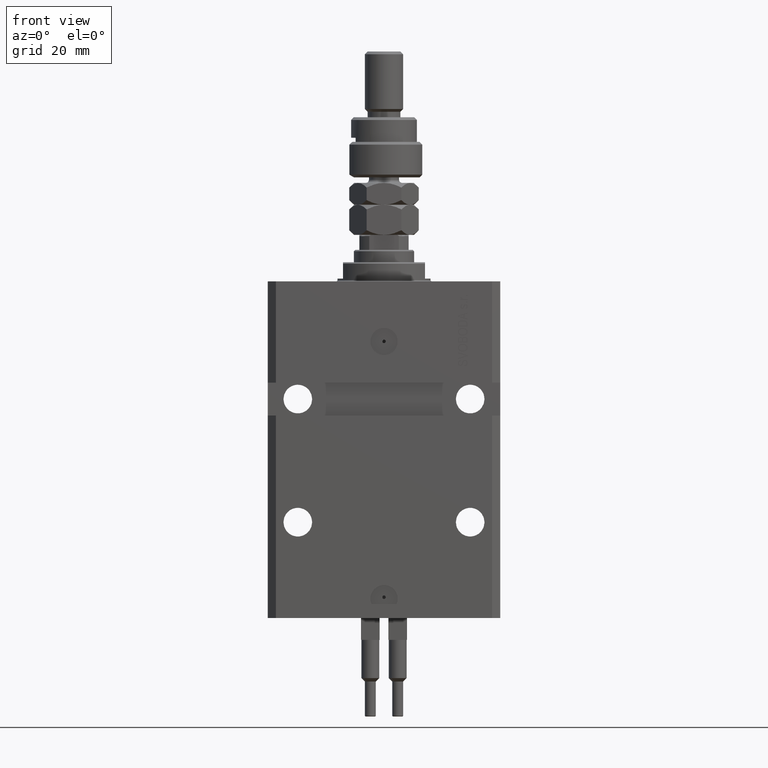
[diagram: clean part render]
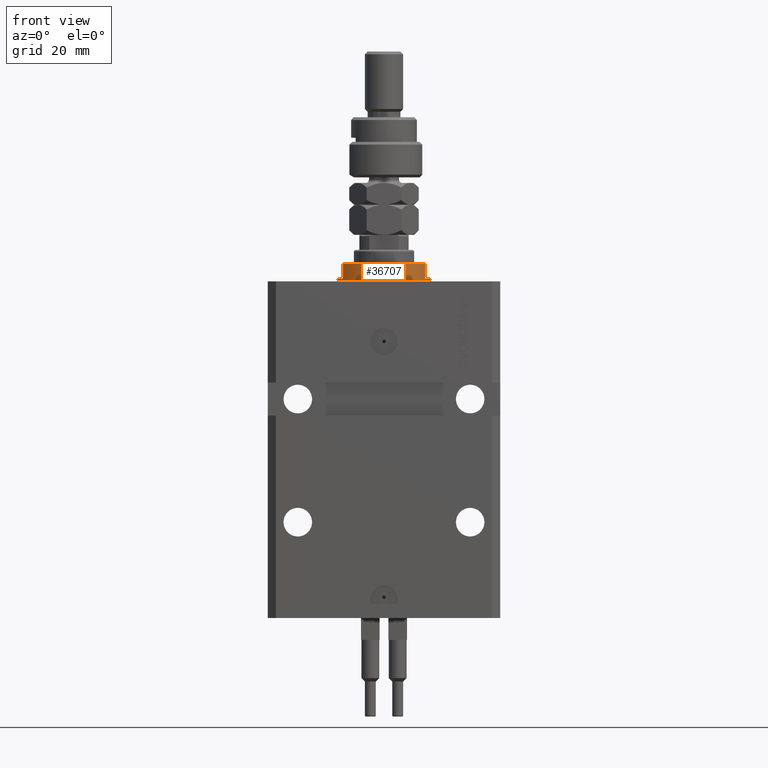
[diagram: same view with one face highlighted and labeled with its STEP entity id]
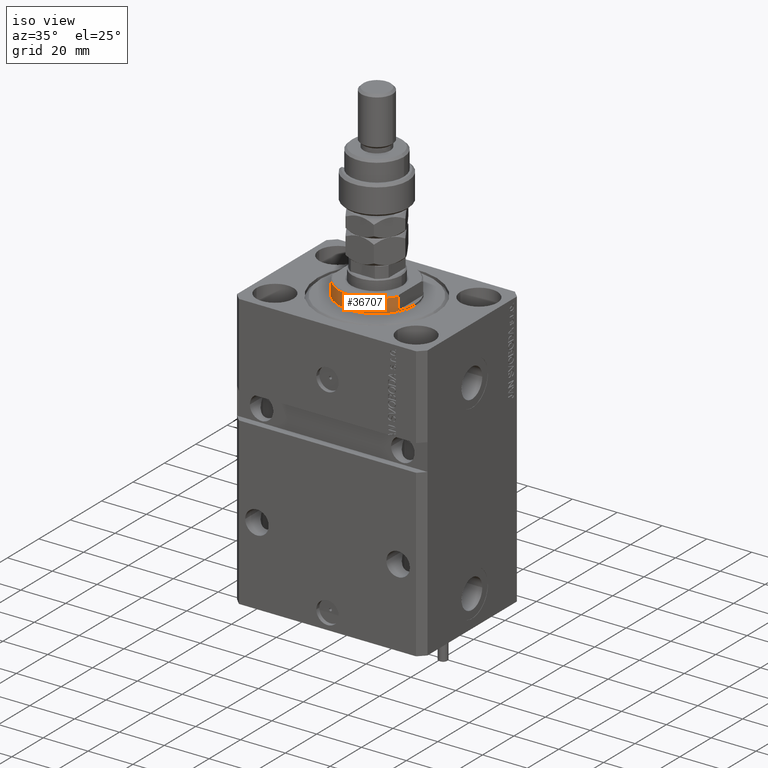
[diagram: same view with one face highlighted and labeled with its STEP entity id]
A machine part, front view. The second image highlights one B-rep face of the part: STEP entity #36707.
A second angle (iso view) of the same face is appended — the face is thin or edge-on in the first view.
In plain terms, the highlighted cylindrical surface (partial cylindrical patch) has radius 17 mm, axis along (0, 0, -1).
Its self-contained STEP definition (entity closure, byte-faithful):
#641 = ORIENTED_EDGE ( 'NONE', *, *, #50658, .F. ) ;
#1366 = ORIENTED_EDGE ( 'NONE', *, *, #15974, .F. ) ;
#1622 = CARTESIAN_POINT ( 'NONE',  ( 0.000000000000000000, 0.000000000000000000, -7.000000000000000000 ) ) ;
#1880 = VERTEX_POINT ( 'NONE', #36834 ) ;
#2898 = AXIS2_PLACEMENT_3D ( 'NONE', #16573, #23932, #12649 ) ;
#4112 = ORIENTED_EDGE ( 'NONE', *, *, #48056, .F. ) ;
#4373 = DIRECTION ( 'NONE',  ( 0.000000000000000000, 0.000000000000000000, -1.000000000000000000 ) ) ;
#5513 = CARTESIAN_POINT ( 'NONE',  ( 15.00000000000000000, -8.000000000000001776, -7.000000000000000000 ) ) ;
#5540 = FACE_OUTER_BOUND ( 'NONE', #41732, .T. ) ;
#7303 = EDGE_CURVE ( 'NONE', #45342, #14255, #46890, .T. ) ;
#7553 = CARTESIAN_POINT ( 'NONE',  ( -17.00000000000000000, 2.081899558550500280E-15, -0.4999999999999995559 ) ) ;
#7992 = DIRECTION ( 'NONE',  ( 1.000000000000000000, 0.000000000000000000, 0.000000000000000000 ) ) ;
#8788 = CIRCLE ( 'NONE', #48072, 17.00000000000000000 ) ;
#8880 = CARTESIAN_POINT ( 'NONE',  ( 15.00000000000000000, -8.000000000000001776, -6.500000000000013323 ) ) ;
#10437 = VERTEX_POINT ( 'NONE', #7553 ) ;
#12225 = CARTESIAN_POINT ( 'NONE',  ( -14.99999999999999645, -8.000000000000003553, -1.000000000000000000 ) ) ;
#12649 = DIRECTION ( 'NONE',  ( -1.000000000000000000, 0.000000000000000000, 0.000000000000000000 ) ) ;
#13000 = LINE ( 'NONE', #28987, #43230 ) ;
#13842 = CARTESIAN_POINT ( 'NONE',  ( 17.00000000000000000, 0.000000000000000000, -1.000000000000000000 ) ) ;
#14255 = VERTEX_POINT ( 'NONE', #46211 ) ;
#14864 = DIRECTION ( 'NONE',  ( 1.000000000000000000, 0.000000000000000000, 0.000000000000000000 ) ) ;
#15489 = DIRECTION ( 'NONE',  ( 0.000000000000000000, 0.000000000000000000, -1.000000000000000000 ) ) ;
#15719 = ORIENTED_EDGE ( 'NONE', *, *, #7303, .T. ) ;
#15974 = EDGE_CURVE ( 'NONE', #51466, #22383, #30402, .T. ) ;
#16573 = CARTESIAN_POINT ( 'NONE',  ( 0.000000000000000000, 0.000000000000000000, -6.500000000000013323 ) ) ;
#17924 = VECTOR ( 'NONE', #34971, 1000.000000000000000 ) ;
#18477 = VECTOR ( 'NONE', #4373, 1000.000000000000000 ) ;
#18984 = CARTESIAN_POINT ( 'NONE',  ( -17.00000000000000000, 2.081899558550500280E-15, -7.000000000000000000 ) ) ;
#22383 = VERTEX_POINT ( 'NONE', #8880 ) ;
#23015 = CIRCLE ( 'NONE', #23835, 17.00000000000000000 ) ;
#23835 = AXIS2_PLACEMENT_3D ( 'NONE', #31290, #39387, #48011 ) ;
#23932 = DIRECTION ( 'NONE',  ( 0.000000000000000000, 0.000000000000000000, 1.000000000000000000 ) ) ;
#25137 = AXIS2_PLACEMENT_3D ( 'NONE', #1622, #29918, #7992 ) ;
#25772 = VERTEX_POINT ( 'NONE', #13842 ) ;
#26002 = EDGE_CURVE ( 'NONE', #25772, #1880, #13000, .T. ) ;
#28987 = CARTESIAN_POINT ( 'NONE',  ( 17.00000000000000000, 0.000000000000000000, -7.000000000000000000 ) ) ;
#29918 = DIRECTION ( 'NONE',  ( -0.000000000000000000, -0.000000000000000000, 1.000000000000000000 ) ) ;
#30402 = LINE ( 'NONE', #5513, #31243 ) ;
#30506 = CIRCLE ( 'NONE', #38015, 17.00000000000000000 ) ;
#31243 = VECTOR ( 'NONE', #46098, 1000.000000000000000 ) ;
#31290 = CARTESIAN_POINT ( 'NONE',  ( 0.000000000000000000, 0.000000000000000000, -1.000000000000000000 ) ) ;
#31306 = ORIENTED_EDGE ( 'NONE', *, *, #45210, .T. ) ;
#31809 = CARTESIAN_POINT ( 'NONE',  ( 14.99999999999999645, -8.000000000000003553, -1.000000000000000000 ) ) ;
#33695 = ORIENTED_EDGE ( 'NONE', *, *, #26002, .T. ) ;
#33764 = CARTESIAN_POINT ( 'NONE',  ( 0.000000000000000000, 0.000000000000000000, -0.4999999999999995559 ) ) ;
#34397 = CARTESIAN_POINT ( 'NONE',  ( 0.000000000000000000, 0.000000000000000000, -1.000000000000000000 ) ) ;
#34883 = ORIENTED_EDGE ( 'NONE', *, *, #49909, .F. ) ;
#34971 = DIRECTION ( 'NONE',  ( -0.000000000000000000, -0.000000000000000000, 1.000000000000000000 ) ) ;
#36084 = CARTESIAN_POINT ( 'NONE',  ( -15.00000000000000000, -8.000000000000001776, -7.000000000000000000 ) ) ;
#36358 = CIRCLE ( 'NONE', #2898, 17.00000000000000000 ) ;
#36707 = ADVANCED_FACE ( 'NONE', ( #5540 ), #37515, .T. ) ;
#36834 = CARTESIAN_POINT ( 'NONE',  ( 17.00000000000000000, 0.000000000000000000, -0.4999999999999995559 ) ) ;
#37515 = CYLINDRICAL_SURFACE ( 'NONE', #25137, 17.00000000000000000 ) ;
#38015 = AXIS2_PLACEMENT_3D ( 'NONE', #33764, #50740, #14864 ) ;
#38890 = LINE ( 'NONE', #18984, #17924 ) ;
#39387 = DIRECTION ( 'NONE',  ( 0.000000000000000000, 0.000000000000000000, -1.000000000000000000 ) ) ;
#41732 = EDGE_LOOP ( 'NONE', ( #4112, #641, #15719, #41795, #1366, #34883, #33695, #31306 ) ) ;
#41795 = ORIENTED_EDGE ( 'NONE', *, *, #49689, .T. ) ;
#43230 = VECTOR ( 'NONE', #44940, 1000.000000000000000 ) ;
#43334 = VERTEX_POINT ( 'NONE', #46210 ) ;
#44940 = DIRECTION ( 'NONE',  ( -0.000000000000000000, -0.000000000000000000, 1.000000000000000000 ) ) ;
#45210 = EDGE_CURVE ( 'NONE', #1880, #10437, #30506, .T. ) ;
#45342 = VERTEX_POINT ( 'NONE', #12225 ) ;
#46098 = DIRECTION ( 'NONE',  ( 0.000000000000000000, 0.000000000000000000, -1.000000000000000000 ) ) ;
#46210 = CARTESIAN_POINT ( 'NONE',  ( -17.00000000000000000, 2.081899558550500280E-15, -1.000000000000000000 ) ) ;
#46211 = CARTESIAN_POINT ( 'NONE',  ( -15.00000000000000000, -8.000000000000001776, -6.500000000000014211 ) ) ;
#46890 = LINE ( 'NONE', #36084, #18477 ) ;
#47176 = DIRECTION ( 'NONE',  ( -1.000000000000000000, 0.000000000000000000, 0.000000000000000000 ) ) ;
#48011 = DIRECTION ( 'NONE',  ( -1.000000000000000000, 0.000000000000000000, 0.000000000000000000 ) ) ;
#48056 = EDGE_CURVE ( 'NONE', #43334, #10437, #38890, .T. ) ;
#48072 = AXIS2_PLACEMENT_3D ( 'NONE', #34397, #15489, #47176 ) ;
#49689 = EDGE_CURVE ( 'NONE', #14255, #22383, #36358, .T. ) ;
#49909 = EDGE_CURVE ( 'NONE', #25772, #51466, #8788, .T. ) ;
#50658 = EDGE_CURVE ( 'NONE', #45342, #43334, #23015, .T. ) ;
#50740 = DIRECTION ( 'NONE',  ( -0.000000000000000000, -0.000000000000000000, -1.000000000000000000 ) ) ;
#51466 = VERTEX_POINT ( 'NONE', #31809 ) ;